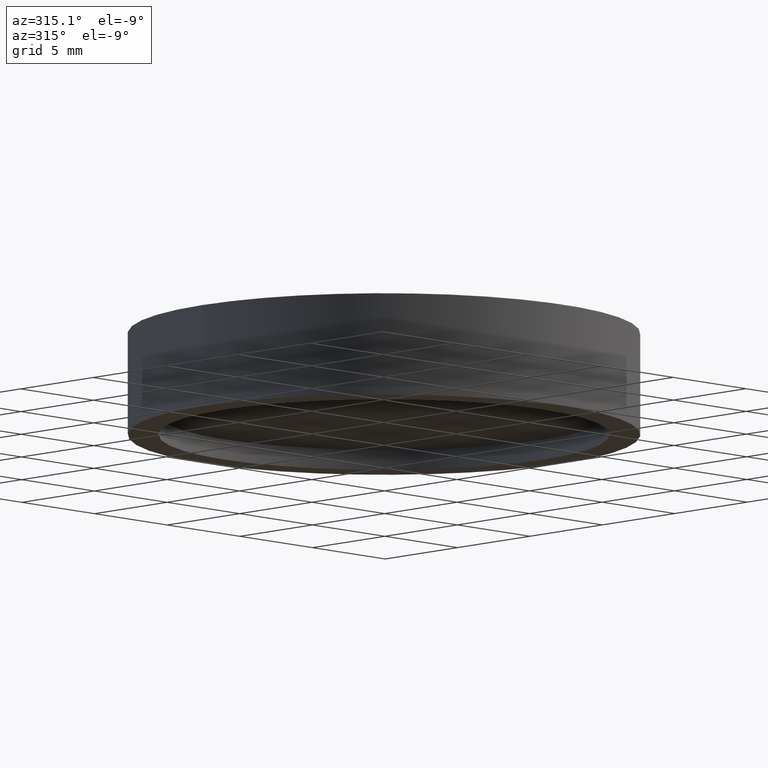
[diagram: clean part render]
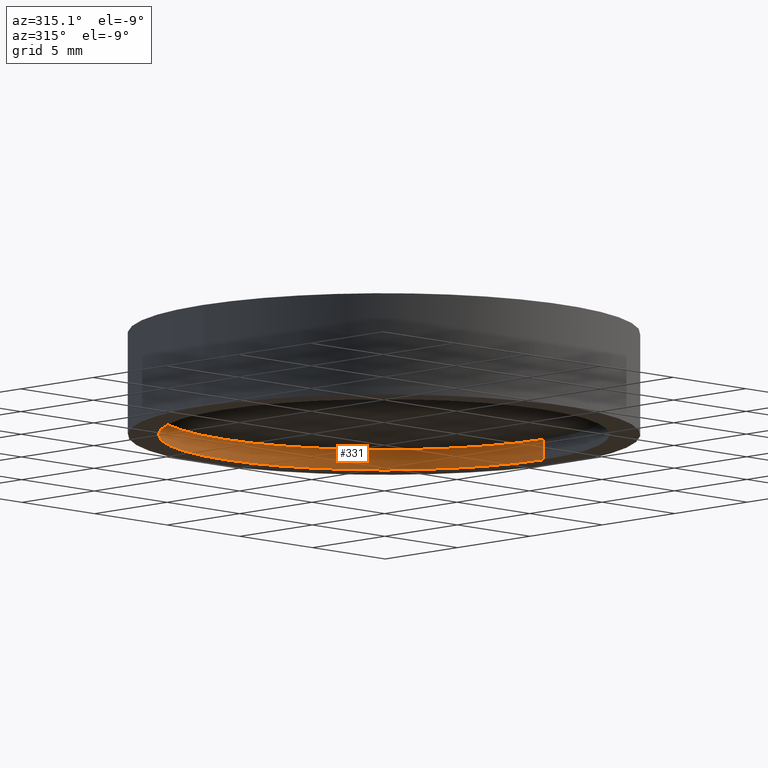
[diagram: same view with one face highlighted and labeled with its STEP entity id]
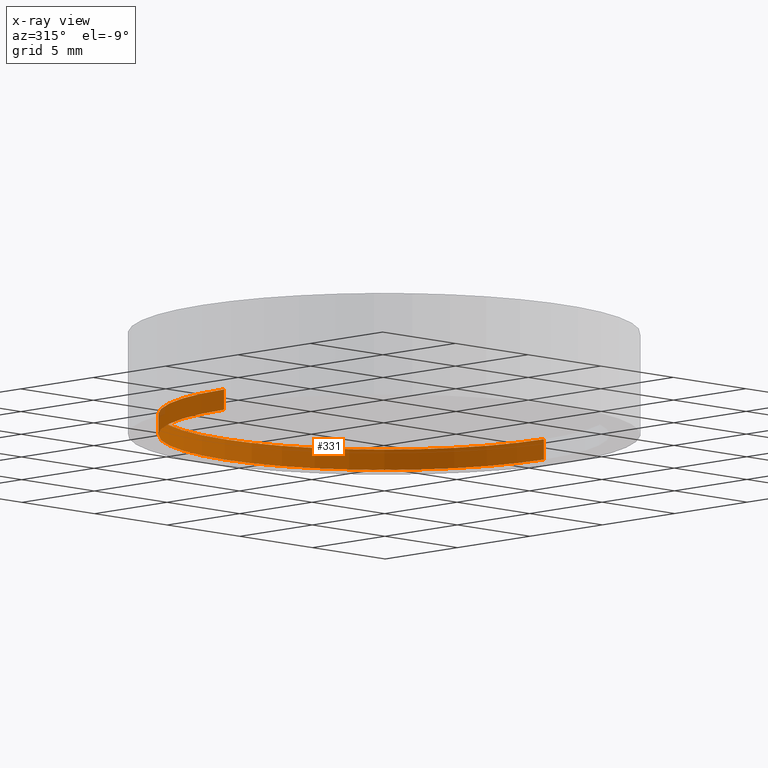
[diagram: x-ray of the same camera — body ghosted, the highlighted face saturated]
A machine part, auxiliary view. The second image highlights one B-rep face of the part: STEP entity #331.
The next image is the same camera in x-ray: the body ghosted, the highlighted face saturated — about 1% of this face is hidden behind the body in this view.
In plain terms, the highlighted cylindrical surface (partial cylindrical patch) has radius 11 mm, axis along (-0, -0, -1).
Its self-contained STEP definition (entity closure, byte-faithful):
#9 = ORIENTED_EDGE ( 'NONE', *, *, #300, .T. ) ;
#11 = CYLINDRICAL_SURFACE ( 'NONE', #421, 11.00000000000000000 ) ;
#15 = DIRECTION ( 'NONE',  ( -1.000000000000000000, 0.0000000000000000000, 0.0000000000000000000 ) ) ;
#19 = VECTOR ( 'NONE', #591, 1000.000000000000000 ) ;
#111 = EDGE_CURVE ( 'NONE', #714, #377, #594, .T. ) ;
#139 = LINE ( 'NONE', #610, #712 ) ;
#162 = FACE_OUTER_BOUND ( 'NONE', #603, .T. ) ;
#172 = CARTESIAN_POINT ( 'NONE',  ( -11.00000000000000000, 0.0000000000000000000, -0.6190000000000003300 ) ) ;
#187 = ORIENTED_EDGE ( 'NONE', *, *, #111, .F. ) ;
#221 = EDGE_CURVE ( 'NONE', #461, #485, #139, .T. ) ;
#226 = DIRECTION ( 'NONE',  ( -0.0000000000000000000, -0.0000000000000000000, -1.000000000000000000 ) ) ;
#236 = DIRECTION ( 'NONE',  ( 0.0000000000000000000, 0.0000000000000000000, -1.000000000000000000 ) ) ;
#276 = CARTESIAN_POINT ( 'NONE',  ( -11.00000000000000000, 0.0000000000000000000, 0.3809999999999997300 ) ) ;
#300 = EDGE_CURVE ( 'NONE', #485, #377, #546, .T. ) ;
#321 = ORIENTED_EDGE ( 'NONE', *, *, #569, .F. ) ;
#326 = CARTESIAN_POINT ( 'NONE',  ( 0.0000000000000000000, 0.0000000000000000000, -0.6190000000000003300 ) ) ;
#331 = ADVANCED_FACE ( 'NONE', ( #162 ), #11, .F. ) ;
#369 = AXIS2_PLACEMENT_3D ( 'NONE', #572, #236, #15 ) ;
#377 = VERTEX_POINT ( 'NONE', #396 ) ;
#390 = DIRECTION ( 'NONE',  ( -1.000000000000000000, 0.0000000000000000000, 0.0000000000000000000 ) ) ;
#396 = CARTESIAN_POINT ( 'NONE',  ( 11.00000000000000000, 1.347111479062088400E-015, -0.6190000000000003300 ) ) ;
#421 = AXIS2_PLACEMENT_3D ( 'NONE', #678, #226, #681 ) ;
#433 = DIRECTION ( 'NONE',  ( -0.0000000000000000000, -0.0000000000000000000, -1.000000000000000000 ) ) ;
#461 = VERTEX_POINT ( 'NONE', #276 ) ;
#485 = VERTEX_POINT ( 'NONE', #172 ) ;
#525 = AXIS2_PLACEMENT_3D ( 'NONE', #326, #673, #390 ) ;
#546 = CIRCLE ( 'NONE', #525, 11.00000000000000000 ) ;
#569 = EDGE_CURVE ( 'NONE', #461, #714, #613, .T. ) ;
#572 = CARTESIAN_POINT ( 'NONE',  ( 0.0000000000000000000, 0.0000000000000000000, 0.3809999999999997300 ) ) ;
#588 = ORIENTED_EDGE ( 'NONE', *, *, #221, .T. ) ;
#591 = DIRECTION ( 'NONE',  ( -0.0000000000000000000, -0.0000000000000000000, -1.000000000000000000 ) ) ;
#594 = LINE ( 'NONE', #711, #19 ) ;
#603 = EDGE_LOOP ( 'NONE', ( #187, #321, #588, #9 ) ) ;
#610 = CARTESIAN_POINT ( 'NONE',  ( -11.00000000000000000, 0.0000000000000000000, 0.3809999999999997300 ) ) ;
#613 = CIRCLE ( 'NONE', #369, 11.00000000000000000 ) ;
#673 = DIRECTION ( 'NONE',  ( 0.0000000000000000000, 0.0000000000000000000, -1.000000000000000000 ) ) ;
#678 = CARTESIAN_POINT ( 'NONE',  ( 0.0000000000000000000, 0.0000000000000000000, 0.3809999999999997300 ) ) ;
#681 = DIRECTION ( 'NONE',  ( -1.000000000000000000, 0.0000000000000000000, 0.0000000000000000000 ) ) ;
#685 = CARTESIAN_POINT ( 'NONE',  ( 11.00000000000000000, 1.347111479062088400E-015, 0.3809999999999997300 ) ) ;
#711 = CARTESIAN_POINT ( 'NONE',  ( 11.00000000000000000, 1.347111479062088400E-015, 0.3809999999999997300 ) ) ;
#712 = VECTOR ( 'NONE', #433, 1000.000000000000000 ) ;
#714 = VERTEX_POINT ( 'NONE', #685 ) ;